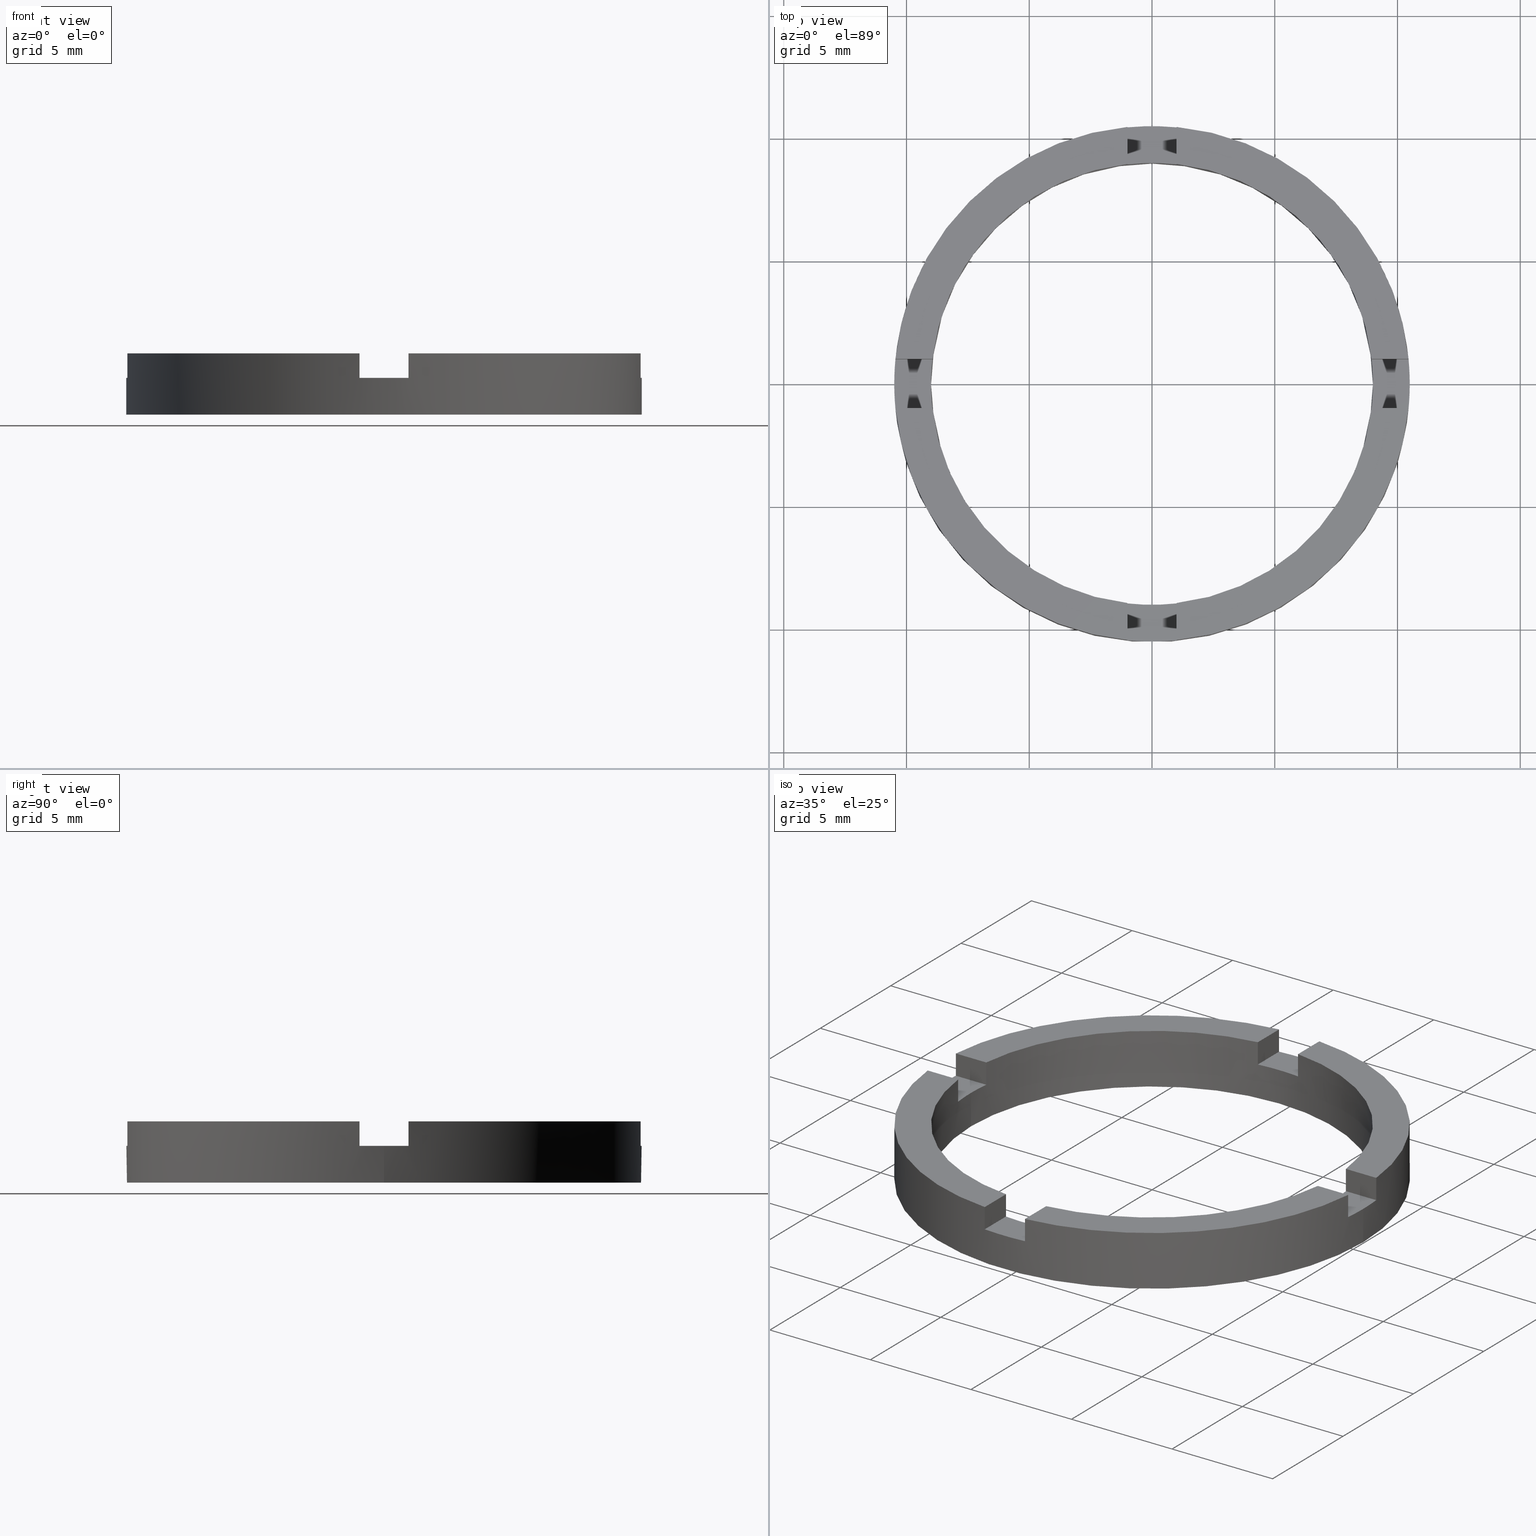
[diagram: canonical four-view strip — front | top / right | iso, engineering-drawing reading convention]
A machine part, canonical four-view strip (front | top / right | iso — engineering-drawing reading convention). The complete STEP part file that produces these views, byte-faithful:
ISO-10303-21;
HEADER;
FILE_DESCRIPTION (( 'STEP AP203' ),
    '1' );
FILE_NAME ('514049.step',
    '2024-12-26T02:32:40',
    ( 'MSI' ),
    ( '' ),
    'SwSTEP 2.0',
    'SolidWorks 2020',
    '' );
FILE_SCHEMA (( 'CONFIG_CONTROL_DESIGN' ));
ENDSEC;

DATA;
#1 = CIRCLE ( 'NONE', #500, 10.50000000000000178 ) ;
#2 = CARTESIAN_POINT ( 'NONE',  ( 8.944271909999168102, 0.9999999999998839817, 2.500000000000000000 ) ) ;
#3 = AXIS2_PLACEMENT_3D ( 'NONE', #119, #323, #541 ) ;
#4 = DIRECTION ( 'NONE',  ( 0.000000000000000000, 0.000000000000000000, 1.000000000000000000 ) ) ;
#5 = DIRECTION ( 'NONE',  ( -1.000000000000000000, 1.920586705545751444E-15, 0.000000000000000000 ) ) ;
#6 = EDGE_CURVE ( 'NONE', #219, #714, #130, .T. ) ;
#7 = FACE_OUTER_BOUND ( 'NONE', #673, .T. ) ;
#8 = CARTESIAN_POINT ( 'NONE',  ( 0.9999999999999622524, 3.500000000000003109, 2.500000000000000000 ) ) ;
#9 = CARTESIAN_POINT ( 'NONE',  ( 0.000000000000000000, 0.000000000000000000, 1.500000000000000000 ) ) ;
#10 = ADVANCED_FACE ( 'NONE', ( #395 ), #103, .F. ) ;
#11 = FACE_OUTER_BOUND ( 'NONE', #185, .T. ) ;
#12 = VECTOR ( 'NONE', #510, 1000.000000000000000 ) ;
#13 = DIRECTION ( 'NONE',  ( 1.000000000000000000, 0.000000000000000000, 0.000000000000000000 ) ) ;
#14 = DIRECTION ( 'NONE',  ( 0.000000000000000000, 0.000000000000000000, 1.000000000000000000 ) ) ;
#15 = CARTESIAN_POINT ( 'NONE',  ( 10.45227248018342436, -1.000000000000158984, 2.500000000000000000 ) ) ;
#16 = ADVANCED_FACE ( 'NONE', ( #371 ), #47, .T. ) ;
#17 = DIRECTION ( 'NONE',  ( 0.000000000000000000, 0.000000000000000000, 1.000000000000000000 ) ) ;
#18 = CARTESIAN_POINT ( 'NONE',  ( 0.000000000000000000, 0.000000000000000000, 1.500000000000000000 ) ) ;
#19 = PLANE ( 'NONE',  #609 ) ;
#20 = CARTESIAN_POINT ( 'NONE',  ( 0.000000000000000000, 0.000000000000000000, 2.500000000000000000 ) ) ;
#21 = DIRECTION ( 'NONE',  ( 0.000000000000000000, 0.000000000000000000, 1.000000000000000000 ) ) ;
#22 = AXIS2_PLACEMENT_3D ( 'NONE', #419, #639, #114 ) ;
#23 = DIRECTION ( 'NONE',  ( 1.000000000000000000, 0.000000000000000000, 0.000000000000000000 ) ) ;
#24 = CARTESIAN_POINT ( 'NONE',  ( 3.500000000000004441, -0.9999999999999608091, 2.500000000000000000 ) ) ;
#25 = EDGE_CURVE ( 'NONE', #418, #384, #625, .T. ) ;
#26 = CARTESIAN_POINT ( 'NONE',  ( 8.999999999999998224, 1.102182119232617517E-15, 1.500000000000000000 ) ) ;
#27 = DIRECTION ( 'NONE',  ( 1.000000000000000000, 0.000000000000000000, 0.000000000000000000 ) ) ;
#28 = VECTOR ( 'NONE', #117, 1000.000000000000000 ) ;
#29 = SECURITY_CLASSIFICATION ( '', '', #330 ) ;
#30 = DIRECTION ( 'NONE',  ( 1.000000000000000000, 0.000000000000000000, 0.000000000000000000 ) ) ;
#31 = EDGE_CURVE ( 'NONE', #702, #647, #372, .T. ) ;
#32 =( NAMED_UNIT ( * ) PLANE_ANGLE_UNIT ( ) SI_UNIT ( $, .RADIAN. ) );
#33 = VECTOR ( 'NONE', #646, 1000.000000000000000 ) ;
#34 = PLANE ( 'NONE',  #739 ) ;
#35 = DIRECTION ( 'NONE',  ( 2.571108009036986263E-15, 1.000000000000000000, 0.000000000000000000 ) ) ;
#36 = VECTOR ( 'NONE', #17, 1000.000000000000000 ) ;
#37 = CARTESIAN_POINT ( 'NONE',  ( 0.000000000000000000, 0.000000000000000000, 2.500000000000000000 ) ) ;
#38 = CC_DESIGN_PERSON_AND_ORGANIZATION_ASSIGNMENT ( #230, #757, ( #312 ) ) ;
#39 = APPROVAL_STATUS ( 'not_yet_approved' ) ;
#40 = DIRECTION ( 'NONE',  ( -0.000000000000000000, -0.000000000000000000, -1.000000000000000000 ) ) ;
#41 = DIRECTION ( 'NONE',  ( -1.000000000000000000, 2.571108009036986263E-15, 0.000000000000000000 ) ) ;
#42 = DIRECTION ( 'NONE',  ( -1.000000000000000000, 2.927345865710786872E-14, 0.000000000000000000 ) ) ;
#43 = CARTESIAN_POINT ( 'NONE',  ( -1.000000000000162759, -10.45227248018342259, 2.500000000000000000 ) ) ;
#44 = PLANE ( 'NONE',  #237 ) ;
#45 = AXIS2_PLACEMENT_3D ( 'NONE', #198, #4, #617 ) ;
#46 = CC_DESIGN_SECURITY_CLASSIFICATION ( #29, ( #283 ) ) ;
#47 = PLANE ( 'NONE',  #571 ) ;
#48 = DIRECTION ( 'NONE',  ( -1.000000000000000000, 2.849902853390471142E-14, 0.000000000000000000 ) ) ;
#49 = DIRECTION ( 'NONE',  ( 0.000000000000000000, 0.000000000000000000, 1.000000000000000000 ) ) ;
#50 = DIRECTION ( 'NONE',  ( -0.000000000000000000, -0.000000000000000000, -1.000000000000000000 ) ) ;
#51 = EDGE_CURVE ( 'NONE', #426, #199, #124, .T. ) ;
#52 = CARTESIAN_POINT ( 'NONE',  ( -10.45227248018344213, 0.9999999999999783507, 2.500000000000000000 ) ) ;
#53 = CARTESIAN_POINT ( 'NONE',  ( 0.000000000000000000, 0.000000000000000000, 1.500000000000000000 ) ) ;
#54 = DIRECTION ( 'NONE',  ( 0.000000000000000000, 0.000000000000000000, 1.000000000000000000 ) ) ;
#55 = CARTESIAN_POINT ( 'NONE',  ( 0.000000000000000000, 0.000000000000000000, 1.500000000000000000 ) ) ;
#56 = DIRECTION ( 'NONE',  ( -0.000000000000000000, -0.000000000000000000, -1.000000000000000000 ) ) ;
#57 = EDGE_CURVE ( 'NONE', #436, #412, #346, .T. ) ;
#58 = DIRECTION ( 'NONE',  ( 1.000000000000000000, 0.000000000000000000, 0.000000000000000000 ) ) ;
#59 = CARTESIAN_POINT ( 'NONE',  ( 8.944271909999168102, 0.9999999999998839817, 2.500000000000000000 ) ) ;
#60 = PERSON ( 'δָ��', 'δָ��', 'δָ��', ('δָ��'), ('δָ��'), ('δָ��') ) ;
#61 = CARTESIAN_POINT ( 'NONE',  ( 0.9999999999999722444, 8.944271909999157444, 2.500000000000000000 ) ) ;
#62 = CARTESIAN_POINT ( 'NONE',  ( -1.000000000000037748, 3.500000000000003109, 2.500000000000000000 ) ) ;
#63 = CARTESIAN_POINT ( 'NONE',  ( 1.000000000000040856, -3.500000000000003109, 1.500000000000000000 ) ) ;
#64 = CARTESIAN_POINT ( 'NONE',  ( 0.9999999999998371303, -10.45227248018345456, 2.500000000000000000 ) ) ;
#65 = CARTESIAN_POINT ( 'NONE',  ( -1.000000000000023981, 10.45227248018343502, 2.500000000000000000 ) ) ;
#66 = DIRECTION ( 'NONE',  ( 1.000000000000000000, 0.000000000000000000, 0.000000000000000000 ) ) ;
#67 = CARTESIAN_POINT ( 'NONE',  ( 0.000000000000000000, 0.000000000000000000, 2.500000000000000000 ) ) ;
#68 = AXIS2_PLACEMENT_3D ( 'NONE', #563, #594, #27 ) ;
#69 = DIRECTION ( 'NONE',  ( -0.000000000000000000, -0.000000000000000000, -1.000000000000000000 ) ) ;
#70 = CARTESIAN_POINT ( 'NONE',  ( 1.000000000000040856, -3.500000000000003109, 2.500000000000000000 ) ) ;
#71 = AXIS2_PLACEMENT_3D ( 'NONE', #18, #699, #304 ) ;
#72 = CARTESIAN_POINT ( 'NONE',  ( -3.500000000000001332, -1.000000000000039746, 1.500000000000000000 ) ) ;
#73 = CC_DESIGN_PERSON_AND_ORGANIZATION_ASSIGNMENT ( #215, #701, ( #283 ) ) ;
#74 = EDGE_CURVE ( 'NONE', #436, #683, #602, .T. ) ;
#75 = APPROVAL_ROLE ( '' ) ;
#76 = DIRECTION ( 'NONE',  ( 1.000000000000000000, 0.000000000000000000, 0.000000000000000000 ) ) ;
#77 = DIRECTION ( 'NONE',  ( 1.000000000000000000, 0.000000000000000000, -0.000000000000000000 ) ) ;
#78 = LINE ( 'NONE', #265, #606 ) ;
#79 = MECHANICAL_CONTEXT ( 'NONE', #539, 'mechanical' ) ;
#80 = APPROVAL ( #39, 'δָ��' ) ;
#81 = CARTESIAN_POINT ( 'NONE',  ( 8.944271909999143233, -1.000000000000116129, 2.500000000000000000 ) ) ;
#82 = VECTOR ( 'NONE', #155, 1000.000000000000000 ) ;
#83 = LINE ( 'NONE', #64, #362 ) ;
#84 = DIRECTION ( 'NONE',  ( 0.000000000000000000, -0.000000000000000000, 1.000000000000000000 ) ) ;
#85 = DIRECTION ( 'NONE',  ( -0.000000000000000000, -0.000000000000000000, -1.000000000000000000 ) ) ;
#86 = CIRCLE ( 'NONE', #264, 8.999999999999998224 ) ;
#87 = CARTESIAN_POINT ( 'NONE',  ( 0.000000000000000000, 0.000000000000000000, 1.500000000000000000 ) ) ;
#88 = AXIS2_PLACEMENT_3D ( 'NONE', #570, #567, #302 ) ;
#89 = CARTESIAN_POINT ( 'NONE',  ( 0.000000000000000000, 0.000000000000000000, 1.500000000000000000 ) ) ;
#90 = CARTESIAN_POINT ( 'NONE',  ( 10.45227248018345279, 0.9999999999998411271, 2.500000000000000000 ) ) ;
#91 = VECTOR ( 'NONE', #40, 1000.000000000000000 ) ;
#92 = CARTESIAN_POINT ( 'NONE',  ( 3.500000000000004441, 1.000000000000039302, 1.500000000000000000 ) ) ;
#93 = DIRECTION ( 'NONE',  ( 1.000000000000000000, 0.000000000000000000, -0.000000000000000000 ) ) ;
#94 = FACE_OUTER_BOUND ( 'NONE', #145, .T. ) ;
#95 = CARTESIAN_POINT ( 'NONE',  ( 0.000000000000000000, 0.000000000000000000, 2.500000000000000000 ) ) ;
#96 = ADVANCED_FACE ( 'NONE', ( #94 ), #34, .F. ) ;
#97 = PLANE ( 'NONE',  #472 ) ;
#98 = CARTESIAN_POINT ( 'NONE',  ( 0.9999999999999622524, 3.500000000000003109, 1.500000000000000000 ) ) ;
#99 = VECTOR ( 'NONE', #772, 1000.000000000000000 ) ;
#100 = DIRECTION ( 'NONE',  ( 1.000000000000000000, -1.920586705545751444E-15, 0.000000000000000000 ) ) ;
#101 = DIRECTION ( 'NONE',  ( 0.000000000000000000, 0.000000000000000000, 1.000000000000000000 ) ) ;
#102 = FACE_OUTER_BOUND ( 'NONE', #627, .T. ) ;
#103 = PLANE ( 'NONE',  #494 ) ;
#104 = CIRCLE ( 'NONE', #561, 8.999999999999998224 ) ;
#105 = DIRECTION ( 'NONE',  ( 0.000000000000000000, -0.000000000000000000, 1.000000000000000000 ) ) ;
#106 = CARTESIAN_POINT ( 'NONE',  ( -1.000000000000026867, 8.944271909999150338, 2.500000000000000000 ) ) ;
#107 = EDGE_CURVE ( 'NONE', #702, #199, #86, .T. ) ;
#108 = CYLINDRICAL_SURFACE ( 'NONE', #250, 10.50000000000000178 ) ;
#109 = CARTESIAN_POINT ( 'NONE',  ( -1.000000000000162759, -10.45227248018342259, 2.500000000000000000 ) ) ;
#110 = DIRECTION ( 'NONE',  ( 1.000000000000000000, 0.000000000000000000, -0.000000000000000000 ) ) ;
#111 = CC_DESIGN_PERSON_AND_ORGANIZATION_ASSIGNMENT ( #227, #689, ( #434 ) ) ;
#112 = ORIENTED_EDGE ( 'NONE', *, *, #674, .T. ) ;
#113 = ORIENTED_EDGE ( 'NONE', *, *, #416, .F. ) ;
#114 = DIRECTION ( 'NONE',  ( 1.000000000000000000, 0.000000000000000000, 0.000000000000000000 ) ) ;
#115 = DIRECTION ( 'NONE',  ( 2.927345865710786872E-14, 1.000000000000000000, -0.000000000000000000 ) ) ;
#116 = EDGE_CURVE ( 'NONE', #418, #428, #350, .T. ) ;
#117 = DIRECTION ( 'NONE',  ( -2.927345865710786872E-14, -1.000000000000000000, 0.000000000000000000 ) ) ;
#118 = ORIENTED_EDGE ( 'NONE', *, *, #490, .F. ) ;
#119 = CARTESIAN_POINT ( 'NONE',  ( 0.000000000000000000, 0.000000000000000000, 2.500000000000000000 ) ) ;
#120 = PLANE ( 'NONE',  #356 ) ;
#121 = ORIENTED_EDGE ( 'NONE', *, *, #241, .F. ) ;
#122 = EDGE_CURVE ( 'NONE', #153, #626, #588, .T. ) ;
#123 = ORIENTED_EDGE ( 'NONE', *, *, #595, .F. ) ;
#124 = LINE ( 'NONE', #296, #628 ) ;
#125 = EDGE_LOOP ( 'NONE', ( #140, #421, #671, #375 ) ) ;
#126 = ORIENTED_EDGE ( 'NONE', *, *, #443, .T. ) ;
#127 = VERTEX_POINT ( 'NONE', #90 ) ;
#128 = DIRECTION ( 'NONE',  ( 2.927345865710786872E-14, 1.000000000000000000, -0.000000000000000000 ) ) ;
#129 = ORIENTED_EDGE ( 'NONE', *, *, #496, .T. ) ;
#130 = LINE ( 'NONE', #299, #373 ) ;
#131 = EDGE_LOOP ( 'NONE', ( #660, #672, #466, #113, #424, #670 ) ) ;
#132 = AXIS2_PLACEMENT_3D ( 'NONE', #20, #725, #556 ) ;
#133 = ORIENTED_EDGE ( 'NONE', *, *, #720, .F. ) ;
#134 = ORIENTED_EDGE ( 'NONE', *, *, #122, .T. ) ;
#135 = ORIENTED_EDGE ( 'NONE', *, *, #152, .F. ) ;
#136 = EDGE_LOOP ( 'NONE', ( #733, #452, #688, #456 ) ) ;
#137 = ORIENTED_EDGE ( 'NONE', *, *, #620, .F. ) ;
#138 = ORIENTED_EDGE ( 'NONE', *, *, #397, .T. ) ;
#139 = ORIENTED_EDGE ( 'NONE', *, *, #749, .T. ) ;
#140 = ORIENTED_EDGE ( 'NONE', *, *, #116, .F. ) ;
#141 = ORIENTED_EDGE ( 'NONE', *, *, #284, .T. ) ;
#142 = EDGE_LOOP ( 'NONE', ( #129, #380, #411, #663 ) ) ;
#143 = ORIENTED_EDGE ( 'NONE', *, *, #244, .T. ) ;
#144 = EDGE_LOOP ( 'NONE', ( #226, #232 ) ) ;
#145 = EDGE_LOOP ( 'NONE', ( #224, #410, #631, #658 ) ) ;
#146 = VERTEX_POINT ( 'NONE', #288 ) ;
#147 = VERTEX_POINT ( 'NONE', #780 ) ;
#148 = AXIS2_PLACEMENT_3D ( 'NONE', #9, #298, #179 ) ;
#149 = ORIENTED_EDGE ( 'NONE', *, *, #211, .T. ) ;
#150 = ORIENTED_EDGE ( 'NONE', *, *, #397, .F. ) ;
#151 = ORIENTED_EDGE ( 'NONE', *, *, #51, .F. ) ;
#152 = EDGE_CURVE ( 'NONE', #444, #146, #354, .T. ) ;
#153 = VERTEX_POINT ( 'NONE', #369 ) ;
#154 = ORIENTED_EDGE ( 'NONE', *, *, #677, .F. ) ;
#155 = DIRECTION ( 'NONE',  ( 1.920586705545751050E-15, 1.000000000000000000, 0.000000000000000000 ) ) ;
#156 = ORIENTED_EDGE ( 'NONE', *, *, #530, .T. ) ;
#157 = EDGE_LOOP ( 'NONE', ( #638, #201, #172, #138, #704, #629, #389, #621, #399, #643, #479, #684 ) ) ;
#158 = EDGE_CURVE ( 'NONE', #382, #447, #341, .T. ) ;
#159 = ORIENTED_EDGE ( 'NONE', *, *, #408, .F. ) ;
#160 = ORIENTED_EDGE ( 'NONE', *, *, #637, .F. ) ;
#161 = ORIENTED_EDGE ( 'NONE', *, *, #600, .F. ) ;
#162 = EDGE_LOOP ( 'NONE', ( #379, #679, #118, #200 ) ) ;
#163 = ORIENTED_EDGE ( 'NONE', *, *, #598, .T. ) ;
#164 = EDGE_LOOP ( 'NONE', ( #112, #126, #161, #229 ) ) ;
#165 = EDGE_LOOP ( 'NONE', ( #440, #182, #700, #650 ) ) ;
#166 = ADVANCED_FACE ( 'NONE', ( #603 ), #605, .F. ) ;
#167 = VERTEX_POINT ( 'NONE', #43 ) ;
#168 = CARTESIAN_POINT ( 'NONE',  ( -1.000000000000118572, -8.944271909999143233, 1.500000000000000000 ) ) ;
#169 = CARTESIAN_POINT ( 'NONE',  ( -3.500000000000001332, -1.000000000000039746, 1.500000000000000000 ) ) ;
#170 = ORIENTED_EDGE ( 'NONE', *, *, #152, .T. ) ;
#171 = ADVANCED_FACE ( 'NONE', ( #102 ), #374, .T. ) ;
#172 = ORIENTED_EDGE ( 'NONE', *, *, #443, .F. ) ;
#173 = AXIS2_PLACEMENT_3D ( 'NONE', #67, #425, #281 ) ;
#174 = ORIENTED_EDGE ( 'NONE', *, *, #388, .T. ) ;
#175 = ORIENTED_EDGE ( 'NONE', *, *, #529, .F. ) ;
#176 = ORIENTED_EDGE ( 'NONE', *, *, #461, .F. ) ;
#177 = VERTEX_POINT ( 'NONE', #565 ) ;
#178 = CARTESIAN_POINT ( 'NONE',  ( 10.50000000000000178, 1.285879139104721028E-15, 1.500000000000000000 ) ) ;
#179 = DIRECTION ( 'NONE',  ( 1.000000000000000000, 0.000000000000000000, 0.000000000000000000 ) ) ;
#180 = EDGE_LOOP ( 'NONE', ( #692, #190, #696, #690 ) ) ;
#181 = APPROVAL ( #678, 'δָ��' ) ;
#182 = ORIENTED_EDGE ( 'NONE', *, *, #697, .F. ) ;
#183 = VERTEX_POINT ( 'NONE', #59 ) ;
#184 = DIRECTION ( 'NONE',  ( -0.000000000000000000, -0.000000000000000000, -1.000000000000000000 ) ) ;
#185 = EDGE_LOOP ( 'NONE', ( #665, #414, #708, #676, #712, #662 ) ) ;
#186 = VERTEX_POINT ( 'NONE', #214 ) ;
#187 = ORIENTED_EDGE ( 'NONE', *, *, #566, .T. ) ;
#188 = CARTESIAN_POINT ( 'NONE',  ( 0.000000000000000000, 0.000000000000000000, 0.000000000000000000 ) ) ;
#189 = ORIENTED_EDGE ( 'NONE', *, *, #457, .F. ) ;
#190 = ORIENTED_EDGE ( 'NONE', *, *, #107, .F. ) ;
#191 = AXIS2_PLACEMENT_3D ( 'NONE', #188, #703, #721 ) ;
#192 = AXIS2_PLACEMENT_3D ( 'NONE', #87, #398, #619 ) ;
#193 = DIRECTION ( 'NONE',  ( -1.000000000000000000, 0.000000000000000000, 0.000000000000000000 ) ) ;
#194 = ORIENTED_EDGE ( 'NONE', *, *, #408, .T. ) ;
#195 = ORIENTED_EDGE ( 'NONE', *, *, #560, .T. ) ;
#196 = ORIENTED_EDGE ( 'NONE', *, *, #359, .F. ) ;
#197 = ORIENTED_EDGE ( 'NONE', *, *, #318, .F. ) ;
#198 = CARTESIAN_POINT ( 'NONE',  ( 0.000000000000000000, 0.000000000000000000, 2.500000000000000000 ) ) ;
#199 = VERTEX_POINT ( 'NONE', #322 ) ;
#200 = ORIENTED_EDGE ( 'NONE', *, *, #255, .F. ) ;
#201 = ORIENTED_EDGE ( 'NONE', *, *, #416, .T. ) ;
#202 = VERTEX_POINT ( 'NONE', #753 ) ;
#203 = DIRECTION ( 'NONE',  ( -0.000000000000000000, -0.000000000000000000, -1.000000000000000000 ) ) ;
#204 = PLANE ( 'NONE',  #515 ) ;
#205 = CARTESIAN_POINT ( 'NONE',  ( -8.944271909999160997, 0.9999999999999744649, 2.500000000000000000 ) ) ;
#206 = CC_DESIGN_DATE_AND_TIME_ASSIGNMENT ( #483, #458, ( #434 ) ) ;
#207 = ORIENTED_EDGE ( 'NONE', *, *, #637, .T. ) ;
#208 = CARTESIAN_POINT ( 'NONE',  ( -0.9999999999999592548, -3.500000000000003109, 2.500000000000000000 ) ) ;
#209 = DIRECTION ( 'NONE',  ( -1.920586705545751050E-15, -1.000000000000000000, -0.000000000000000000 ) ) ;
#210 = DIRECTION ( 'NONE',  ( 1.000000000000000000, 0.000000000000000000, -0.000000000000000000 ) ) ;
#211 = EDGE_CURVE ( 'NONE', #436, #382, #591, .T. ) ;
#212 = ORIENTED_EDGE ( 'NONE', *, *, #777, .T. ) ;
#213 = LOCAL_TIME ( 10, 32, 40.00000000000000000, #724 ) ;
#214 = CARTESIAN_POINT ( 'NONE',  ( -8.999999999999998224, 0.000000000000000000, 0.000000000000000000 ) ) ;
#215 = PERSON_AND_ORGANIZATION ( #60, #233 ) ;
#216 = LOCAL_TIME ( 10, 32, 40.00000000000000000, #741 ) ;
#217 = CALENDAR_DATE ( 2024, 26, 12 ) ;
#218 = AXIS2_PLACEMENT_3D ( 'NONE', #55, #497, #58 ) ;
#219 = VERTEX_POINT ( 'NONE', #520 ) ;
#220 = PERSON_AND_ORGANIZATION_ROLE ( 'creator' ) ;
#221 = PERSON_AND_ORGANIZATION ( #60, #233 ) ;
#222 = CARTESIAN_POINT ( 'NONE',  ( 0.000000000000000000, 0.000000000000000000, 2.500000000000000000 ) ) ;
#223 = CALENDAR_DATE ( 2024, 26, 12 ) ;
#224 = ORIENTED_EDGE ( 'NONE', *, *, #57, .F. ) ;
#225 = CALENDAR_DATE ( 2024, 26, 12 ) ;
#226 = ORIENTED_EDGE ( 'NONE', *, *, #622, .T. ) ;
#227 = PERSON_AND_ORGANIZATION ( #60, #233 ) ;
#228 = AXIS2_PLACEMENT_3D ( 'NONE', #361, #653, #66 ) ;
#229 = ORIENTED_EDGE ( 'NONE', *, *, #335, .F. ) ;
#230 = PERSON_AND_ORGANIZATION ( #60, #233 ) ;
#231 = APPROVAL_DATE_TIME ( #736, #181 ) ;
#232 = ORIENTED_EDGE ( 'NONE', *, *, #744, .T. ) ;
#233 = ORGANIZATION ( 'δָ��', 'δָ��', '' ) ;
#234 = CIRCLE ( 'NONE', #71, 10.50000000000000178 ) ;
#235 = PLANE ( 'NONE',  #685 ) ;
#236 = FACE_OUTER_BOUND ( 'NONE', #157, .T. ) ;
#237 = AXIS2_PLACEMENT_3D ( 'NONE', #545, #576, #210 ) ;
#238 = VECTOR ( 'NONE', #69, 1000.000000000000000 ) ;
#239 = CARTESIAN_POINT ( 'NONE',  ( 0.9999999999999722444, 8.944271909999157444, 1.500000000000000000 ) ) ;
#240 = CARTESIAN_POINT ( 'NONE',  ( -8.999999999999998224, 0.000000000000000000, 2.500000000000000000 ) ) ;
#241 = EDGE_CURVE ( 'NONE', #664, #453, #83, .T. ) ;
#242 = VECTOR ( 'NONE', #585, 1000.000000000000000 ) ;
#243 = LINE ( 'NONE', #562, #773 ) ;
#244 = EDGE_CURVE ( 'NONE', #448, #702, #78, .T. ) ;
#245 = FACE_BOUND ( 'NONE', #144, .T. ) ;
#246 = CARTESIAN_POINT ( 'NONE',  ( 0.000000000000000000, 0.000000000000000000, 1.500000000000000000 ) ) ;
#247 = DIRECTION ( 'NONE',  ( 1.000000000000000000, 0.000000000000000000, 0.000000000000000000 ) ) ;
#248 = CIRCLE ( 'NONE', #148, 8.999999999999998224 ) ;
#249 = VECTOR ( 'NONE', #56, 1000.000000000000000 ) ;
#250 = AXIS2_PLACEMENT_3D ( 'NONE', #442, #636, #726 ) ;
#251 = LINE ( 'NONE', #15, #242 ) ;
#252 = CIRCLE ( 'NONE', #525, 8.999999999999998224 ) ;
#253 = CARTESIAN_POINT ( 'NONE',  ( -1.000000000000162759, -10.45227248018342259, 1.500000000000000000 ) ) ;
#254 = CARTESIAN_POINT ( 'NONE',  ( 0.9999999999998371303, -10.45227248018345456, 2.500000000000000000 ) ) ;
#255 = EDGE_CURVE ( 'NONE', #634, #680, #104, .T. ) ;
#256 = VECTOR ( 'NONE', #115, 1000.000000000000000 ) ;
#257 = FACE_OUTER_BOUND ( 'NONE', #142, .T. ) ;
#258 = FACE_OUTER_BOUND ( 'NONE', #131, .T. ) ;
#259 = FACE_OUTER_BOUND ( 'NONE', #376, .T. ) ;
#260 = DIRECTION ( 'NONE',  ( 0.000000000000000000, 0.000000000000000000, 1.000000000000000000 ) ) ;
#261 = DIRECTION ( 'NONE',  ( -2.571108009036985868E-15, -1.000000000000000000, 0.000000000000000000 ) ) ;
#262 = LINE ( 'NONE', #652, #238 ) ;
#263 = FACE_OUTER_BOUND ( 'NONE', #164, .T. ) ;
#264 = AXIS2_PLACEMENT_3D ( 'NONE', #222, #49, #76 ) ;
#265 = CARTESIAN_POINT ( 'NONE',  ( -3.500000000000001332, -1.000000000000039746, 2.500000000000000000 ) ) ;
#266 = VECTOR ( 'NONE', #779, 1000.000000000000000 ) ;
#267 = CARTESIAN_POINT ( 'NONE',  ( 8.944271909999143233, -1.000000000000116129, 2.500000000000000000 ) ) ;
#268 = CYLINDRICAL_SURFACE ( 'NONE', #615, 10.50000000000000178 ) ;
#269 = CIRCLE ( 'NONE', #321, 10.50000000000000178 ) ;
#270 = CIRCLE ( 'NONE', #300, 10.50000000000000178 ) ;
#271 = CIRCLE ( 'NONE', #668, 8.999999999999998224 ) ;
#272 = DIRECTION ( 'NONE',  ( -0.000000000000000000, 0.000000000000000000, 1.000000000000000000 ) ) ;
#273 = CARTESIAN_POINT ( 'NONE',  ( 0.000000000000000000, 0.000000000000000000, 2.500000000000000000 ) ) ;
#274 = FACE_OUTER_BOUND ( 'NONE', #404, .T. ) ;
#275 = AXIS2_PLACEMENT_3D ( 'NONE', #580, #402, #716 ) ;
#276 = CIRCLE ( 'NONE', #68, 8.999999999999998224 ) ;
#277 = DIRECTION ( 'NONE',  ( -0.000000000000000000, 0.000000000000000000, 1.000000000000000000 ) ) ;
#278 = LINE ( 'NONE', #581, #280 ) ;
#279 = VECTOR ( 'NONE', #128, 1000.000000000000000 ) ;
#280 = VECTOR ( 'NONE', #470, 1000.000000000000000 ) ;
#281 = DIRECTION ( 'NONE',  ( 1.000000000000000000, 0.000000000000000000, -0.000000000000000000 ) ) ;
#282 = LINE ( 'NONE', #70, #279 ) ;
#283 = PRODUCT_DEFINITION_FORMATION_WITH_SPECIFIED_SOURCE ( '�κ�', '', #312, .NOT_KNOWN. ) ;
#284 = EDGE_CURVE ( 'NONE', #428, #202, #348, .T. ) ;
#285 = DIRECTION ( 'NONE',  ( 1.000000000000000000, 0.000000000000000000, 0.000000000000000000 ) ) ;
#286 = EDGE_CURVE ( 'NONE', #641, #647, #345, .T. ) ;
#287 = ADVANCED_FACE ( 'NONE', ( #364 ), #108, .T. ) ;
#288 = CARTESIAN_POINT ( 'NONE',  ( 10.50000000000000178, 1.285879139104721028E-15, 0.000000000000000000 ) ) ;
#289 = EDGE_CURVE ( 'NONE', #418, #482, #365, .T. ) ;
#290 = CARTESIAN_POINT ( 'NONE',  ( -8.944271909999152115, -1.000000000000025535, 2.500000000000000000 ) ) ;
#291 = EDGE_CURVE ( 'NONE', #199, #167, #297, .T. ) ;
#292 = DIRECTION ( 'NONE',  ( -2.849902853390471142E-14, -1.000000000000000000, 0.000000000000000000 ) ) ;
#293 = CIRCLE ( 'NONE', #705, 10.50000000000000178 ) ;
#294 = PLANE ( 'NONE',  #192 ) ;
#295 = CARTESIAN_POINT ( 'NONE',  ( -3.500000000000002220, 0.9999999999999603650, 2.500000000000000000 ) ) ;
#296 = CARTESIAN_POINT ( 'NONE',  ( -1.000000000000118572, -8.944271909999143233, 2.500000000000000000 ) ) ;
#297 = LINE ( 'NONE', #208, #33 ) ;
#298 = DIRECTION ( 'NONE',  ( 0.000000000000000000, 0.000000000000000000, 1.000000000000000000 ) ) ;
#299 = CARTESIAN_POINT ( 'NONE',  ( -10.50000000000000178, 0.000000000000000000, 2.500000000000000000 ) ) ;
#300 = AXIS2_PLACEMENT_3D ( 'NONE', #273, #649, #324 ) ;
#301 = DIRECTION ( 'NONE',  ( -0.000000000000000000, 0.000000000000000000, 1.000000000000000000 ) ) ;
#302 = DIRECTION ( 'NONE',  ( 1.000000000000000000, 0.000000000000000000, 0.000000000000000000 ) ) ;
#303 = DIRECTION ( 'NONE',  ( -0.000000000000000000, -0.000000000000000000, -1.000000000000000000 ) ) ;
#304 = DIRECTION ( 'NONE',  ( 1.000000000000000000, 0.000000000000000000, 0.000000000000000000 ) ) ;
#305 = DIRECTION ( 'NONE',  ( -0.000000000000000000, -0.000000000000000000, -1.000000000000000000 ) ) ;
#306 = MANIFOLD_SOLID_BREP ( '�г�-����1', #441 ) ;
#307 = EDGE_CURVE ( 'NONE', #426, #400, #549, .T. ) ;
#308 = CARTESIAN_POINT ( 'NONE',  ( 0.9999999999998371303, -10.45227248018345456, 1.500000000000000000 ) ) ;
#309 = CARTESIAN_POINT ( 'NONE',  ( -8.944271909999152115, -1.000000000000025535, 1.500000000000000000 ) ) ;
#310 = ADVANCED_FACE ( 'NONE', ( #551 ), #765, .T. ) ;
#311 = CC_DESIGN_DATE_AND_TIME_ASSIGNMENT ( #727, #601, ( #29 ) ) ;
#312 = PRODUCT ( '514049', '514049', '', ( #79 ) ) ;
#313 = CARTESIAN_POINT ( 'NONE',  ( 0.000000000000000000, 0.000000000000000000, 2.500000000000000000 ) ) ;
#314 = CARTESIAN_POINT ( 'NONE',  ( 0.000000000000000000, 0.000000000000000000, 1.500000000000000000 ) ) ;
#315 = EDGE_CURVE ( 'NONE', #400, #453, #293, .T. ) ;
#316 = ADVANCED_FACE ( 'NONE', ( #257 ), #235, .T. ) ;
#317 = ADVANCED_FACE ( 'NONE', ( #258 ), #294, .T. ) ;
#318 = EDGE_CURVE ( 'NONE', #642, #407, #526, .T. ) ;
#319 = CARTESIAN_POINT ( 'NONE',  ( 3.500000000000004441, 1.000000000000039302, 1.500000000000000000 ) ) ;
#320 = CARTESIAN_POINT ( 'NONE',  ( 0.000000000000000000, 0.000000000000000000, 2.500000000000000000 ) ) ;
#321 = AXIS2_PLACEMENT_3D ( 'NONE', #587, #648, #735 ) ;
#322 = CARTESIAN_POINT ( 'NONE',  ( -1.000000000000118572, -8.944271909999143233, 2.500000000000000000 ) ) ;
#323 = DIRECTION ( 'NONE',  ( 0.000000000000000000, 0.000000000000000000, 1.000000000000000000 ) ) ;
#324 = DIRECTION ( 'NONE',  ( 1.000000000000000000, 0.000000000000000000, 0.000000000000000000 ) ) ;
#325 = ADVANCED_FACE ( 'NONE', ( #236 ), #523, .F. ) ;
#326 = ADVANCED_FACE ( 'NONE', ( #782 ), #586, .T. ) ;
#327 = DIRECTION ( 'NONE',  ( 1.000000000000000000, -2.571108009036985474E-15, -0.000000000000000000 ) ) ;
#328 = AXIS2_PLACEMENT_3D ( 'NONE', #53, #616, #575 ) ;
#329 = EDGE_CURVE ( 'NONE', #426, #626, #755, .T. ) ;
#330 = SECURITY_CLASSIFICATION_LEVEL ( 'unclassified' ) ;
#331 = CARTESIAN_POINT ( 'NONE',  ( 0.000000000000000000, 0.000000000000000000, 2.500000000000000000 ) ) ;
#332 = PRODUCT_RELATED_PRODUCT_CATEGORY ( 'detail', '', ( #312 ) ) ;
#333 = DIRECTION ( 'NONE',  ( -0.000000000000000000, -0.000000000000000000, -1.000000000000000000 ) ) ;
#334 = ADVANCED_FACE ( 'NONE', ( #775 ), #353, .F. ) ;
#335 = EDGE_CURVE ( 'NONE', #127, #377, #524, .T. ) ;
#336 = EDGE_CURVE ( 'NONE', #698, #384, #243, .T. ) ;
#337 = CARTESIAN_POINT ( 'NONE',  ( -3.500000000000002220, 0.9999999999999603650, 1.500000000000000000 ) ) ;
#338 = DIRECTION ( 'NONE',  ( 0.000000000000000000, 0.000000000000000000, 1.000000000000000000 ) ) ;
#339 = AXIS2_PLACEMENT_3D ( 'NONE', #417, #184, #193 ) ;
#340 = PLANE ( 'NONE',  #554 ) ;
#341 = LINE ( 'NONE', #459, #593 ) ;
#342 = CARTESIAN_POINT ( 'NONE',  ( 8.999999999999998224, 1.102182119232617517E-15, 0.000000000000000000 ) ) ;
#343 = DIRECTION ( 'NONE',  ( 1.000000000000000000, -2.571108009036985868E-15, 0.000000000000000000 ) ) ;
#344 = VECTOR ( 'NONE', #599, 1000.000000000000000 ) ;
#345 = LINE ( 'NONE', #72, #607 ) ;
#346 = LINE ( 'NONE', #381, #596 ) ;
#347 = AXIS2_PLACEMENT_3D ( 'NONE', #246, #301, #13 ) ;
#348 = LINE ( 'NONE', #363, #344 ) ;
#349 = DIRECTION ( 'NONE',  ( 2.849902853390471142E-14, 1.000000000000000000, 0.000000000000000000 ) ) ;
#350 = LINE ( 'NONE', #98, #82 ) ;
#351 = DIRECTION ( 'NONE',  ( -0.000000000000000000, -0.000000000000000000, -1.000000000000000000 ) ) ;
#352 = DIRECTION ( 'NONE',  ( -0.000000000000000000, 0.000000000000000000, 1.000000000000000000 ) ) ;
#353 = PLANE ( 'NONE',  #644 ) ;
#354 = LINE ( 'NONE', #403, #99 ) ;
#355 = CARTESIAN_POINT ( 'NONE',  ( 0.9999999999999726885, 8.944271909999159220, 2.500000000000000000 ) ) ;
#356 = AXIS2_PLACEMENT_3D ( 'NONE', #582, #35, #41 ) ;
#357 = CARTESIAN_POINT ( 'NONE',  ( -8.999999999999998224, 0.000000000000000000, 1.500000000000000000 ) ) ;
#358 = DIRECTION ( 'NONE',  ( 1.000000000000000000, 0.000000000000000000, 0.000000000000000000 ) ) ;
#359 = EDGE_CURVE ( 'NONE', #444, #377, #1, .T. ) ;
#360 = DIRECTION ( 'NONE',  ( -0.000000000000000000, -0.000000000000000000, -1.000000000000000000 ) ) ;
#361 = CARTESIAN_POINT ( 'NONE',  ( 0.000000000000000000, 0.000000000000000000, 0.000000000000000000 ) ) ;
#362 = VECTOR ( 'NONE', #203, 1000.000000000000000 ) ;
#363 = CARTESIAN_POINT ( 'NONE',  ( 0.9999999999999756861, 10.45227248018344035, 2.500000000000000000 ) ) ;
#364 = FACE_OUTER_BOUND ( 'NONE', #666, .T. ) ;
#365 = LINE ( 'NONE', #355, #36 ) ;
#366 = EDGE_CURVE ( 'NONE', #634, #384, #262, .T. ) ;
#367 = VERTEX_POINT ( 'NONE', #65 ) ;
#368 = DIRECTION ( 'NONE',  ( 1.000000000000000000, -2.571108009036985474E-15, -0.000000000000000000 ) ) ;
#369 = CARTESIAN_POINT ( 'NONE',  ( 0.9999999999998814282, -8.944271909999169878, 2.500000000000000000 ) ) ;
#370 = DIRECTION ( 'NONE',  ( 0.000000000000000000, 0.000000000000000000, 1.000000000000000000 ) ) ;
#371 = FACE_OUTER_BOUND ( 'NONE', #165, .T. ) ;
#372 = LINE ( 'NONE', #290, #624 ) ;
#373 = VECTOR ( 'NONE', #305, 1000.000000000000000 ) ;
#374 = PLANE ( 'NONE',  #173 ) ;
#375 = ORIENTED_EDGE ( 'NONE', *, *, #284, .F. ) ;
#376 = EDGE_LOOP ( 'NONE', ( #196, #170, #174, #431, #176, #694, #686, #195, #378, #141, #159, #687 ) ) ;
#377 = VERTEX_POINT ( 'NONE', #742 ) ;
#378 = ORIENTED_EDGE ( 'NONE', *, *, #496, .F. ) ;
#379 = ORIENTED_EDGE ( 'NONE', *, *, #557, .F. ) ;
#380 = ORIENTED_EDGE ( 'NONE', *, *, #336, .T. ) ;
#381 = CARTESIAN_POINT ( 'NONE',  ( 3.500000000000004441, -0.9999999999999608091, 1.500000000000000000 ) ) ;
#382 = VERTEX_POINT ( 'NONE', #26 ) ;
#383 = ORIENTED_EDGE ( 'NONE', *, *, #329, .F. ) ;
#384 = VERTEX_POINT ( 'NONE', #508 ) ;
#385 = AXIS2_PLACEMENT_3D ( 'NONE', #604, #770, #763 ) ;
#386 = ORIENTED_EDGE ( 'NONE', *, *, #6, .T. ) ;
#387 = VERTEX_POINT ( 'NONE', #501 ) ;
#388 = EDGE_CURVE ( 'NONE', #146, #714, #269, .T. ) ;
#389 = ORIENTED_EDGE ( 'NONE', *, *, #366, .F. ) ;
#390 = DIRECTION ( 'NONE',  ( -1.000000000000000000, 2.571108009036985868E-15, 0.000000000000000000 ) ) ;
#391 = DIRECTION ( 'NONE',  ( 1.000000000000000000, -2.849902853390471142E-14, 0.000000000000000000 ) ) ;
#392 = ORIENTED_EDGE ( 'NONE', *, *, #241, .T. ) ;
#393 = ORIENTED_EDGE ( 'NONE', *, *, #107, .T. ) ;
#394 = DIRECTION ( 'NONE',  ( 0.000000000000000000, 0.000000000000000000, 1.000000000000000000 ) ) ;
#395 = FACE_OUTER_BOUND ( 'NONE', #635, .T. ) ;
#396 = ORIENTED_EDGE ( 'NONE', *, *, #366, .T. ) ;
#397 = EDGE_CURVE ( 'NONE', #183, #482, #521, .T. ) ;
#398 = DIRECTION ( 'NONE',  ( -0.000000000000000000, 0.000000000000000000, 1.000000000000000000 ) ) ;
#399 = ORIENTED_EDGE ( 'NONE', *, *, #749, .F. ) ;
#400 = VERTEX_POINT ( 'NONE', #253 ) ;
#401 = ADVANCED_FACE ( 'NONE', ( #263 ), #204, .F. ) ;
#402 = DIRECTION ( 'NONE',  ( 0.000000000000000000, 0.000000000000000000, 1.000000000000000000 ) ) ;
#403 = CARTESIAN_POINT ( 'NONE',  ( 10.50000000000000178, 1.285879139104721028E-15, 2.500000000000000000 ) ) ;
#404 = EDGE_LOOP ( 'NONE', ( #445, #207, #383, #415 ) ) ;
#405 = CARTESIAN_POINT ( 'NONE',  ( 1.000000000000040856, -3.500000000000003109, 1.500000000000000000 ) ) ;
#406 = CC_DESIGN_PERSON_AND_ORGANIZATION_ASSIGNMENT ( #221, #220, ( #283 ) ) ;
#407 = VERTEX_POINT ( 'NONE', #544 ) ;
#408 = EDGE_CURVE ( 'NONE', #127, #202, #771, .T. ) ;
#409 = VERTEX_POINT ( 'NONE', #357 ) ;
#410 = ORIENTED_EDGE ( 'NONE', *, *, #74, .T. ) ;
#411 = ORIENTED_EDGE ( 'NONE', *, *, #25, .F. ) ;
#412 = VERTEX_POINT ( 'NONE', #729 ) ;
#413 = DIRECTION ( 'NONE',  ( 1.920586705545751444E-15, 1.000000000000000000, 0.000000000000000000 ) ) ;
#414 = ORIENTED_EDGE ( 'NONE', *, *, #540, .T. ) ;
#415 = ORIENTED_EDGE ( 'NONE', *, *, #307, .T. ) ;
#416 = EDGE_CURVE ( 'NONE', #382, #387, #498, .T. ) ;
#417 = CARTESIAN_POINT ( 'NONE',  ( 0.000000000000000000, 0.000000000000000000, 2.500000000000000000 ) ) ;
#418 = VERTEX_POINT ( 'NONE', #239 ) ;
#419 = CARTESIAN_POINT ( 'NONE',  ( 0.000000000000000000, 0.000000000000000000, 2.500000000000000000 ) ) ;
#420 = DIRECTION ( 'NONE',  ( 1.000000000000000000, 0.000000000000000000, 0.000000000000000000 ) ) ;
#421 = ORIENTED_EDGE ( 'NONE', *, *, #289, .T. ) ;
#422 = DIRECTION ( 'NONE',  ( 1.000000000000000000, -2.927345865710786872E-14, 0.000000000000000000 ) ) ;
#423 = EDGE_LOOP ( 'NONE', ( #212, #134, #160, #121 ) ) ;
#424 = ORIENTED_EDGE ( 'NONE', *, *, #211, .F. ) ;
#425 = DIRECTION ( 'NONE',  ( 0.000000000000000000, 0.000000000000000000, 1.000000000000000000 ) ) ;
#426 = VERTEX_POINT ( 'NONE', #168 ) ;
#427 = PLANE ( 'NONE',  #275 ) ;
#428 = VERTEX_POINT ( 'NONE', #476 ) ;
#429 = DIRECTION ( 'NONE',  ( -0.000000000000000000, 0.000000000000000000, 1.000000000000000000 ) ) ;
#430 = ADVANCED_FACE ( 'NONE', ( #522 ), #97, .F. ) ;
#431 = ORIENTED_EDGE ( 'NONE', *, *, #6, .F. ) ;
#432 = CARTESIAN_POINT ( 'NONE',  ( 0.000000000000000000, 0.000000000000000000, 1.500000000000000000 ) ) ;
#433 = EDGE_LOOP ( 'NONE', ( #489, #651 ) ) ;
#434 = PRODUCT_DEFINITION ( 'δ֪', '', #283, #512 ) ;
#435 = CARTESIAN_POINT ( 'NONE',  ( 0.000000000000000000, 0.000000000000000000, 1.500000000000000000 ) ) ;
#436 = VERTEX_POINT ( 'NONE', #709 ) ;
#437 = EDGE_LOOP ( 'NONE', ( #143, #656, #747, #137 ) ) ;
#438 = CARTESIAN_POINT ( 'NONE',  ( -8.944271909999160997, 0.9999999999999744649, 2.500000000000000000 ) ) ;
#439 = ORIENTED_EDGE ( 'NONE', *, *, #329, .T. ) ;
#440 = ORIENTED_EDGE ( 'NONE', *, *, #731, .F. ) ;
#441 = CLOSED_SHELL ( 'NONE', ( #166, #532, #310, #171, #16, #326, #455, #287, #325, #633, #778, #706, #334, #430, #657, #401, #96, #317, #10, #542, #316 ) ) ;
#442 = CARTESIAN_POINT ( 'NONE',  ( 0.000000000000000000, 0.000000000000000000, 2.500000000000000000 ) ) ;
#443 = EDGE_CURVE ( 'NONE', #183, #387, #756, .T. ) ;
#444 = VERTEX_POINT ( 'NONE', #178 ) ;
#445 = ORIENTED_EDGE ( 'NONE', *, *, #315, .T. ) ;
#446 = ORIENTED_EDGE ( 'NONE', *, *, #674, .F. ) ;
#447 = VERTEX_POINT ( 'NONE', #342 ) ;
#448 = VERTEX_POINT ( 'NONE', #573 ) ;
#449 = EDGE_LOOP ( 'NONE', ( #149, #675, #654, #682, #187, #695, #393, #151, #439, #618, #693, #451 ) ) ;
#450 = APPROVAL_ROLE ( '' ) ;
#451 = ORIENTED_EDGE ( 'NONE', *, *, #74, .F. ) ;
#452 = ORIENTED_EDGE ( 'NONE', *, *, #51, .T. ) ;
#453 = VERTEX_POINT ( 'NONE', #308 ) ;
#454 = PRODUCT_DEFINITION_SHAPE ( 'NONE', 'NONE',  #434 ) ;
#455 = ADVANCED_FACE ( 'NONE', ( #781, #245 ), #427, .F. ) ;
#456 = ORIENTED_EDGE ( 'NONE', *, *, #530, .F. ) ;
#457 = EDGE_CURVE ( 'NONE', #482, #202, #517, .T. ) ;
#458 = DATE_TIME_ROLE ( 'creation_date' ) ;
#459 = CARTESIAN_POINT ( 'NONE',  ( 8.999999999999998224, 1.102182119232617517E-15, 2.500000000000000000 ) ) ;
#460 = DIRECTION ( 'NONE',  ( -0.000000000000000000, 0.000000000000000000, 1.000000000000000000 ) ) ;
#461 = EDGE_CURVE ( 'NONE', #642, #219, #527, .T. ) ;
#462 = APPROVAL_DATE_TIME ( #488, #728 ) ;
#463 =( LENGTH_UNIT ( ) NAMED_UNIT ( * ) SI_UNIT ( .MILLI., .METRE. ) );
#464 = APPROVAL_DATE_TIME ( #743, #80 ) ;
#465 = APPLICATION_CONTEXT ( 'configuration controlled 3d designs of mechanical parts and assemblies' ) ;
#466 = ORIENTED_EDGE ( 'NONE', *, *, #600, .T. ) ;
#467 = DIRECTION ( 'NONE',  ( -0.000000000000000000, -0.000000000000000000, -1.000000000000000000 ) ) ;
#468 = PERSON_AND_ORGANIZATION ( #60, #233 ) ;
#469 = DIRECTION ( 'NONE',  ( -1.000000000000000000, 0.000000000000000000, 0.000000000000000000 ) ) ;
#470 = DIRECTION ( 'NONE',  ( -1.000000000000000000, 2.849902853390471142E-14, -0.000000000000000000 ) ) ;
#471 = PERSON_AND_ORGANIZATION ( #60, #233 ) ;
#472 = AXIS2_PLACEMENT_3D ( 'NONE', #552, #42, #492 ) ;
#473 = CC_DESIGN_PERSON_AND_ORGANIZATION_ASSIGNMENT ( #485, #528, ( #29 ) ) ;
#474 = LOCAL_TIME ( 10, 32, 40.00000000000000000, #740 ) ;
#475 = SHAPE_DEFINITION_REPRESENTATION ( #454, #761 ) ;
#476 = CARTESIAN_POINT ( 'NONE',  ( 0.9999999999999753530, 10.45227248018343857, 1.500000000000000000 ) ) ;
#477 = CALENDAR_DATE ( 2024, 26, 12 ) ;
#478 = CARTESIAN_POINT ( 'NONE',  ( 0.9999999999998814282, -8.944271909999169878, 1.500000000000000000 ) ) ;
#479 = ORIENTED_EDGE ( 'NONE', *, *, #564, .T. ) ;
#480 = APPROVAL_PERSON_ORGANIZATION ( #718, #80, #776 ) ;
#481 = EDGE_CURVE ( 'NONE', #714, #146, #774, .T. ) ;
#482 = VERTEX_POINT ( 'NONE', #61 ) ;
#483 = DATE_AND_TIME ( #225, #216 ) ;
#484 = CARTESIAN_POINT ( 'NONE',  ( 0.000000000000000000, 0.000000000000000000, 2.500000000000000000 ) ) ;
#485 = PERSON_AND_ORGANIZATION ( #60, #233 ) ;
#486 = CARTESIAN_POINT ( 'NONE',  ( 0.000000000000000000, 0.000000000000000000, 0.000000000000000000 ) ) ;
#487 = ORIENTED_EDGE ( 'NONE', *, *, #315, .F. ) ;
#488 = DATE_AND_TIME ( #734, #213 ) ;
#489 = ORIENTED_EDGE ( 'NONE', *, *, #481, .F. ) ;
#490 = EDGE_CURVE ( 'NONE', #680, #407, #752, .T. ) ;
#491 = LINE ( 'NONE', #109, #762 ) ;
#492 = DIRECTION ( 'NONE',  ( -2.927345865710786872E-14, -1.000000000000000000, 0.000000000000000000 ) ) ;
#493 = LINE ( 'NONE', #62, #506 ) ;
#494 = AXIS2_PLACEMENT_3D ( 'NONE', #577, #5, #713 ) ;
#495 = VECTOR ( 'NONE', #101, 1000.000000000000000 ) ;
#496 = EDGE_CURVE ( 'NONE', #428, #698, #516, .T. ) ;
#497 = DIRECTION ( 'NONE',  ( -0.000000000000000000, 0.000000000000000000, 1.000000000000000000 ) ) ;
#498 = CIRCLE ( 'NONE', #347, 8.999999999999998224 ) ;
#499 = VECTOR ( 'NONE', #630, 1000.000000000000000 ) ;
#500 = AXIS2_PLACEMENT_3D ( 'NONE', #435, #272, #23 ) ;
#501 = CARTESIAN_POINT ( 'NONE',  ( 8.944271909999168102, 0.9999999999998839817, 1.500000000000000000 ) ) ;
#502 = UNCERTAINTY_MEASURE_WITH_UNIT (LENGTH_MEASURE( 1.000000000000000082E-05 ), #463, 'distance_accuracy_value', 'NONE');
#503 = LINE ( 'NONE', #92, #511 ) ;
#504 = CARTESIAN_POINT ( 'NONE',  ( -1.000000000000023981, 10.45227248018343502, 1.500000000000000000 ) ) ;
#505 = VECTOR ( 'NONE', #390, 1000.000000000000000 ) ;
#506 = VECTOR ( 'NONE', #717, 1000.000000000000000 ) ;
#507 = LINE ( 'NONE', #553, #754 ) ;
#508 = CARTESIAN_POINT ( 'NONE',  ( -1.000000000000026867, 8.944271909999150338, 1.500000000000000000 ) ) ;
#509 = VECTOR ( 'NONE', #50, 1000.000000000000000 ) ;
#510 = DIRECTION ( 'NONE',  ( 0.000000000000000000, 0.000000000000000000, 1.000000000000000000 ) ) ;
#511 = VECTOR ( 'NONE', #589, 1000.000000000000000 ) ;
#512 = DESIGN_CONTEXT ( 'detailed design', #465, 'design' ) ;
#513 = FACE_OUTER_BOUND ( 'NONE', #437, .T. ) ;
#514 = CARTESIAN_POINT ( 'NONE',  ( -0.9999999999999592548, -3.500000000000003109, 1.500000000000000000 ) ) ;
#515 = AXIS2_PLACEMENT_3D ( 'NONE', #319, #349, #48 ) ;
#516 = CIRCLE ( 'NONE', #547, 10.50000000000000178 ) ;
#517 = LINE ( 'NONE', #8, #499 ) ;
#518 = VECTOR ( 'NONE', #360, 1000.000000000000000 ) ;
#519 = CIRCLE ( 'NONE', #22, 10.50000000000000178 ) ;
#520 = CARTESIAN_POINT ( 'NONE',  ( -10.50000000000000178, 0.000000000000000000, 1.500000000000000000 ) ) ;
#521 = CIRCLE ( 'NONE', #3, 8.999999999999998224 ) ;
#522 = FACE_OUTER_BOUND ( 'NONE', #136, .T. ) ;
#523 = CYLINDRICAL_SURFACE ( 'NONE', #339, 8.999999999999998224 ) ;
#524 = LINE ( 'NONE', #592, #518 ) ;
#525 = AXIS2_PLACEMENT_3D ( 'NONE', #486, #54, #247 ) ;
#526 = LINE ( 'NONE', #52, #495 ) ;
#527 = CIRCLE ( 'NONE', #328, 10.50000000000000178 ) ;
#528 = PERSON_AND_ORGANIZATION_ROLE ( 'classification_officer' ) ;
#529 = EDGE_CURVE ( 'NONE', #177, #642, #783, .T. ) ;
#530 = EDGE_CURVE ( 'NONE', #400, #167, #491, .T. ) ;
#531 = LINE ( 'NONE', #438, #12 ) ;
#532 = ADVANCED_FACE ( 'NONE', ( #259 ), #268, .T. ) ;
#533 = CIRCLE ( 'NONE', #228, 8.999999999999998224 ) ;
#534 = APPLICATION_PROTOCOL_DEFINITION ( 'international standard', 'config_control_design', 1994, #465 ) ;
#535 = CIRCLE ( 'NONE', #590, 10.50000000000000178 ) ;
#536 = LINE ( 'NONE', #24, #538 ) ;
#537 = EDGE_CURVE ( 'NONE', #367, #407, #519, .T. ) ;
#538 = VECTOR ( 'NONE', #745, 1000.000000000000000 ) ;
#539 = APPLICATION_CONTEXT ( 'configuration controlled 3d designs of mechanical parts and assemblies' ) ;
#540 = EDGE_CURVE ( 'NONE', #219, #641, #234, .T. ) ;
#541 = DIRECTION ( 'NONE',  ( 1.000000000000000000, 0.000000000000000000, 0.000000000000000000 ) ) ;
#542 = ADVANCED_FACE ( 'NONE', ( #758 ), #19, .F. ) ;
#543 = AXIS2_PLACEMENT_3D ( 'NONE', #37, #370, #77 ) ;
#544 = CARTESIAN_POINT ( 'NONE',  ( -10.45227248018344213, 0.9999999999999783507, 2.500000000000000000 ) ) ;
#545 = CARTESIAN_POINT ( 'NONE',  ( 0.000000000000000000, 0.000000000000000000, 1.500000000000000000 ) ) ;
#546 = CARTESIAN_POINT ( 'NONE',  ( -10.45227248018343680, -1.000000000000021760, 1.500000000000000000 ) ) ;
#547 = AXIS2_PLACEMENT_3D ( 'NONE', #89, #105, #584 ) ;
#548 = DIRECTION ( 'NONE',  ( 1.000000000000000000, 0.000000000000000000, 0.000000000000000000 ) ) ;
#549 = LINE ( 'NONE', #514, #28 ) ;
#550 = PLANE ( 'NONE',  #572 ) ;
#551 = FACE_OUTER_BOUND ( 'NONE', #162, .T. ) ;
#552 = CARTESIAN_POINT ( 'NONE',  ( -0.9999999999999592548, -3.500000000000003109, 1.500000000000000000 ) ) ;
#553 = CARTESIAN_POINT ( 'NONE',  ( -1.000000000000024203, 10.45227248018343680, 2.500000000000000000 ) ) ;
#554 = AXIS2_PLACEMENT_3D ( 'NONE', #314, #429, #623 ) ;
#555 = CC_DESIGN_APPROVAL ( #80, ( #29 ) ) ;
#556 = DIRECTION ( 'NONE',  ( 1.000000000000000000, 0.000000000000000000, -0.000000000000000000 ) ) ;
#557 = EDGE_CURVE ( 'NONE', #367, #634, #493, .T. ) ;
#558 = DIRECTION ( 'NONE',  ( 2.927345865710786872E-14, 1.000000000000000000, 0.000000000000000000 ) ) ;
#559 = CARTESIAN_POINT ( 'NONE',  ( -8.944271909999152115, -1.000000000000025535, 2.500000000000000000 ) ) ;
#560 = EDGE_CURVE ( 'NONE', #367, #698, #507, .T. ) ;
#561 = AXIS2_PLACEMENT_3D ( 'NONE', #583, #21, #285 ) ;
#562 = CARTESIAN_POINT ( 'NONE',  ( -1.000000000000037748, 3.500000000000003109, 1.500000000000000000 ) ) ;
#563 = CARTESIAN_POINT ( 'NONE',  ( 0.000000000000000000, 0.000000000000000000, 1.500000000000000000 ) ) ;
#564 = EDGE_CURVE ( 'NONE', #409, #186, #764, .T. ) ;
#565 = CARTESIAN_POINT ( 'NONE',  ( -8.944271909999160997, 0.9999999999999744649, 1.500000000000000000 ) ) ;
#566 = EDGE_CURVE ( 'NONE', #409, #647, #248, .T. ) ;
#567 = DIRECTION ( 'NONE',  ( 0.000000000000000000, -0.000000000000000000, 1.000000000000000000 ) ) ;
#568 = AXIS2_PLACEMENT_3D ( 'NONE', #484, #613, #578 ) ;
#569 =( NAMED_UNIT ( * ) SI_UNIT ( $, .STERADIAN. ) SOLID_ANGLE_UNIT ( ) );
#570 = CARTESIAN_POINT ( 'NONE',  ( 0.000000000000000000, 0.000000000000000000, 1.500000000000000000 ) ) ;
#571 = AXIS2_PLACEMENT_3D ( 'NONE', #95, #14, #110 ) ;
#572 = AXIS2_PLACEMENT_3D ( 'NONE', #169, #261, #343 ) ;
#573 = CARTESIAN_POINT ( 'NONE',  ( -10.45227248018343680, -1.000000000000021760, 2.500000000000000000 ) ) ;
#574 = DIRECTION ( 'NONE',  ( -1.000000000000000000, 0.000000000000000000, 0.000000000000000000 ) ) ;
#575 = DIRECTION ( 'NONE',  ( 1.000000000000000000, 0.000000000000000000, 0.000000000000000000 ) ) ;
#576 = DIRECTION ( 'NONE',  ( 0.000000000000000000, 0.000000000000000000, 1.000000000000000000 ) ) ;
#577 = CARTESIAN_POINT ( 'NONE',  ( -1.000000000000037748, 3.500000000000003109, 1.500000000000000000 ) ) ;
#578 = DIRECTION ( 'NONE',  ( 1.000000000000000000, 0.000000000000000000, 0.000000000000000000 ) ) ;
#579 = CARTESIAN_POINT ( 'NONE',  ( -10.45227248018344213, 0.9999999999999783507, 1.500000000000000000 ) ) ;
#580 = CARTESIAN_POINT ( 'NONE',  ( 0.000000000000000000, 0.000000000000000000, 0.000000000000000000 ) ) ;
#581 = CARTESIAN_POINT ( 'NONE',  ( 3.500000000000004441, 1.000000000000039302, 2.500000000000000000 ) ) ;
#582 = CARTESIAN_POINT ( 'NONE',  ( -3.500000000000002220, 0.9999999999999603650, 1.500000000000000000 ) ) ;
#583 = CARTESIAN_POINT ( 'NONE',  ( 0.000000000000000000, 0.000000000000000000, 2.500000000000000000 ) ) ;
#584 = DIRECTION ( 'NONE',  ( 1.000000000000000000, 0.000000000000000000, 0.000000000000000000 ) ) ;
#585 = DIRECTION ( 'NONE',  ( 0.000000000000000000, 0.000000000000000000, 1.000000000000000000 ) ) ;
#586 = PLANE ( 'NONE',  #132 ) ;
#587 = CARTESIAN_POINT ( 'NONE',  ( 0.000000000000000000, 0.000000000000000000, 0.000000000000000000 ) ) ;
#588 = LINE ( 'NONE', #681, #91 ) ;
#589 = DIRECTION ( 'NONE',  ( -1.000000000000000000, 2.849902853390471142E-14, -0.000000000000000000 ) ) ;
#590 = AXIS2_PLACEMENT_3D ( 'NONE', #723, #352, #420 ) ;
#591 = CIRCLE ( 'NONE', #751, 8.999999999999998224 ) ;
#592 = CARTESIAN_POINT ( 'NONE',  ( 10.45227248018345279, 0.9999999999998411271, 2.500000000000000000 ) ) ;
#593 = VECTOR ( 'NONE', #467, 1000.000000000000000 ) ;
#594 = DIRECTION ( 'NONE',  ( 0.000000000000000000, 0.000000000000000000, 1.000000000000000000 ) ) ;
#595 = EDGE_CURVE ( 'NONE', #448, #167, #766, .T. ) ;
#596 = VECTOR ( 'NONE', #391, 1000.000000000000000 ) ;
#597 = VECTOR ( 'NONE', #338, 1000.000000000000000 ) ;
#598 = EDGE_CURVE ( 'NONE', #412, #147, #251, .T. ) ;
#599 = DIRECTION ( 'NONE',  ( 0.000000000000000000, 0.000000000000000000, 1.000000000000000000 ) ) ;
#600 = EDGE_CURVE ( 'NONE', #377, #387, #503, .T. ) ;
#601 = DATE_TIME_ROLE ( 'classification_date' ) ;
#602 = LINE ( 'NONE', #81, #597 ) ;
#603 = FACE_OUTER_BOUND ( 'NONE', #449, .T. ) ;
#604 = CARTESIAN_POINT ( 'NONE',  ( 0.000000000000000000, 0.000000000000000000, 0.000000000000000000 ) ) ;
#605 = CYLINDRICAL_SURFACE ( 'NONE', #610, 8.999999999999998224 ) ;
#606 = VECTOR ( 'NONE', #327, 1000.000000000000000 ) ;
#607 = VECTOR ( 'NONE', #368, 1000.000000000000000 ) ;
#608 = DIRECTION ( 'NONE',  ( 0.000000000000000000, 0.000000000000000000, 1.000000000000000000 ) ) ;
#609 = AXIS2_PLACEMENT_3D ( 'NONE', #730, #100, #413 ) ;
#610 = AXIS2_PLACEMENT_3D ( 'NONE', #331, #85, #574 ) ;
#611 = APPROVAL_STATUS ( 'not_yet_approved' ) ;
#612 = ORIENTED_EDGE ( 'NONE', *, *, #481, .T. ) ;
#613 = DIRECTION ( 'NONE',  ( 0.000000000000000000, 0.000000000000000000, 1.000000000000000000 ) ) ;
#614 = CARTESIAN_POINT ( 'NONE',  ( 3.500000000000004441, -0.9999999999999608091, 1.500000000000000000 ) ) ;
#615 = AXIS2_PLACEMENT_3D ( 'NONE', #313, #351, #469 ) ;
#616 = DIRECTION ( 'NONE',  ( 0.000000000000000000, 0.000000000000000000, 1.000000000000000000 ) ) ;
#617 = DIRECTION ( 'NONE',  ( 1.000000000000000000, 0.000000000000000000, 0.000000000000000000 ) ) ;
#618 = ORIENTED_EDGE ( 'NONE', *, *, #122, .F. ) ;
#619 = DIRECTION ( 'NONE',  ( 1.000000000000000000, 0.000000000000000000, 0.000000000000000000 ) ) ;
#620 = EDGE_CURVE ( 'NONE', #448, #641, #760, .T. ) ;
#621 = ORIENTED_EDGE ( 'NONE', *, *, #255, .T. ) ;
#622 = EDGE_CURVE ( 'NONE', #186, #447, #252, .T. ) ;
#623 = DIRECTION ( 'NONE',  ( 1.000000000000000000, 0.000000000000000000, 0.000000000000000000 ) ) ;
#624 = VECTOR ( 'NONE', #333, 1000.000000000000000 ) ;
#625 = CIRCLE ( 'NONE', #88, 8.999999999999998224 ) ;
#626 = VERTEX_POINT ( 'NONE', #478 ) ;
#627 = EDGE_LOOP ( 'NONE', ( #189, #150, #446, #194 ) ) ;
#628 = VECTOR ( 'NONE', #608, 1000.000000000000000 ) ;
#629 = ORIENTED_EDGE ( 'NONE', *, *, #25, .T. ) ;
#630 = DIRECTION ( 'NONE',  ( 1.920586705545751050E-15, 1.000000000000000000, 0.000000000000000000 ) ) ;
#631 = ORIENTED_EDGE ( 'NONE', *, *, #731, .T. ) ;
#632 = ORIENTED_EDGE ( 'NONE', *, *, #490, .T. ) ;
#633 = ADVANCED_FACE ( 'NONE', ( #513 ), #550, .F. ) ;
#634 = VERTEX_POINT ( 'NONE', #106 ) ;
#635 = EDGE_LOOP ( 'NONE', ( #667, #396, #645, #659 ) ) ;
#636 = DIRECTION ( 'NONE',  ( -0.000000000000000000, -0.000000000000000000, -1.000000000000000000 ) ) ;
#637 = EDGE_CURVE ( 'NONE', #453, #626, #769, .T. ) ;
#638 = ORIENTED_EDGE ( 'NONE', *, *, #158, .F. ) ;
#639 = DIRECTION ( 'NONE',  ( 0.000000000000000000, 0.000000000000000000, 1.000000000000000000 ) ) ;
#640 = CARTESIAN_POINT ( 'NONE',  ( -10.45227248018343680, -1.000000000000021760, 2.500000000000000000 ) ) ;
#641 = VERTEX_POINT ( 'NONE', #546 ) ;
#642 = VERTEX_POINT ( 'NONE', #579 ) ;
#643 = ORIENTED_EDGE ( 'NONE', *, *, #768, .T. ) ;
#644 = AXIS2_PLACEMENT_3D ( 'NONE', #63, #422, #558 ) ;
#645 = ORIENTED_EDGE ( 'NONE', *, *, #336, .F. ) ;
#646 = DIRECTION ( 'NONE',  ( -2.927345865710786872E-14, -1.000000000000000000, 0.000000000000000000 ) ) ;
#647 = VERTEX_POINT ( 'NONE', #309 ) ;
#648 = DIRECTION ( 'NONE',  ( 0.000000000000000000, 0.000000000000000000, 1.000000000000000000 ) ) ;
#649 = DIRECTION ( 'NONE',  ( 0.000000000000000000, 0.000000000000000000, 1.000000000000000000 ) ) ;
#650 = ORIENTED_EDGE ( 'NONE', *, *, #720, .T. ) ;
#651 = ORIENTED_EDGE ( 'NONE', *, *, #388, .F. ) ;
#652 = CARTESIAN_POINT ( 'NONE',  ( -1.000000000000027311, 8.944271909999152115, 2.500000000000000000 ) ) ;
#653 = DIRECTION ( 'NONE',  ( 0.000000000000000000, 0.000000000000000000, 1.000000000000000000 ) ) ;
#654 = ORIENTED_EDGE ( 'NONE', *, *, #622, .F. ) ;
#655 =( GEOMETRIC_REPRESENTATION_CONTEXT ( 3 ) GLOBAL_UNCERTAINTY_ASSIGNED_CONTEXT ( ( #502 ) ) GLOBAL_UNIT_ASSIGNED_CONTEXT ( ( #463, #32, #569 ) ) REPRESENTATION_CONTEXT ( 'NONE', 'WORKASPACE' ) );
#656 = ORIENTED_EDGE ( 'NONE', *, *, #31, .T. ) ;
#657 = ADVANCED_FACE ( 'NONE', ( #274 ), #340, .T. ) ;
#658 = ORIENTED_EDGE ( 'NONE', *, *, #598, .F. ) ;
#659 = ORIENTED_EDGE ( 'NONE', *, *, #560, .F. ) ;
#660 = ORIENTED_EDGE ( 'NONE', *, *, #677, .T. ) ;
#661 = ORIENTED_EDGE ( 'NONE', *, *, #540, .F. ) ;
#662 = ORIENTED_EDGE ( 'NONE', *, *, #529, .T. ) ;
#663 = ORIENTED_EDGE ( 'NONE', *, *, #116, .T. ) ;
#664 = VERTEX_POINT ( 'NONE', #254 ) ;
#665 = ORIENTED_EDGE ( 'NONE', *, *, #461, .T. ) ;
#666 = EDGE_LOOP ( 'NONE', ( #135, #154, #163, #133, #392, #487, #156, #123, #750, #661, #386, #612 ) ) ;
#667 = ORIENTED_EDGE ( 'NONE', *, *, #557, .T. ) ;
#668 = AXIS2_PLACEMENT_3D ( 'NONE', #320, #394, #358 ) ;
#669 = APPLICATION_PROTOCOL_DEFINITION ( 'international standard', 'config_control_design', 1994, #539 ) ;
#670 = ORIENTED_EDGE ( 'NONE', *, *, #57, .T. ) ;
#671 = ORIENTED_EDGE ( 'NONE', *, *, #457, .T. ) ;
#672 = ORIENTED_EDGE ( 'NONE', *, *, #359, .T. ) ;
#673 = EDGE_LOOP ( 'NONE', ( #175, #139, #632, #197 ) ) ;
#674 = EDGE_CURVE ( 'NONE', #127, #183, #278, .T. ) ;
#675 = ORIENTED_EDGE ( 'NONE', *, *, #158, .T. ) ;
#676 = ORIENTED_EDGE ( 'NONE', *, *, #566, .F. ) ;
#677 = EDGE_CURVE ( 'NONE', #412, #444, #535, .T. ) ;
#678 = APPROVAL_STATUS ( 'not_yet_approved' ) ;
#679 = ORIENTED_EDGE ( 'NONE', *, *, #537, .T. ) ;
#680 = VERTEX_POINT ( 'NONE', #205 ) ;
#681 = CARTESIAN_POINT ( 'NONE',  ( 0.9999999999998814282, -8.944271909999169878, 2.500000000000000000 ) ) ;
#682 = ORIENTED_EDGE ( 'NONE', *, *, #564, .F. ) ;
#683 = VERTEX_POINT ( 'NONE', #267 ) ;
#684 = ORIENTED_EDGE ( 'NONE', *, *, #744, .F. ) ;
#685 = AXIS2_PLACEMENT_3D ( 'NONE', #707, #84, #93 ) ;
#686 = ORIENTED_EDGE ( 'NONE', *, *, #537, .F. ) ;
#687 = ORIENTED_EDGE ( 'NONE', *, *, #335, .T. ) ;
#688 = ORIENTED_EDGE ( 'NONE', *, *, #291, .T. ) ;
#689 = PERSON_AND_ORGANIZATION_ROLE ( 'creator' ) ;
#690 = ORIENTED_EDGE ( 'NONE', *, *, #595, .T. ) ;
#691 = CC_DESIGN_APPROVAL ( #181, ( #283 ) ) ;
#692 = ORIENTED_EDGE ( 'NONE', *, *, #291, .F. ) ;
#693 = ORIENTED_EDGE ( 'NONE', *, *, #697, .T. ) ;
#694 = ORIENTED_EDGE ( 'NONE', *, *, #318, .T. ) ;
#695 = ORIENTED_EDGE ( 'NONE', *, *, #31, .F. ) ;
#696 = ORIENTED_EDGE ( 'NONE', *, *, #244, .F. ) ;
#697 = EDGE_CURVE ( 'NONE', #153, #683, #271, .T. ) ;
#698 = VERTEX_POINT ( 'NONE', #504 ) ;
#699 = DIRECTION ( 'NONE',  ( 0.000000000000000000, 0.000000000000000000, 1.000000000000000000 ) ) ;
#700 = ORIENTED_EDGE ( 'NONE', *, *, #777, .F. ) ;
#701 = PERSON_AND_ORGANIZATION_ROLE ( 'design_supplier' ) ;
#702 = VERTEX_POINT ( 'NONE', #559 ) ;
#703 = DIRECTION ( 'NONE',  ( 0.000000000000000000, 0.000000000000000000, 1.000000000000000000 ) ) ;
#704 = ORIENTED_EDGE ( 'NONE', *, *, #289, .F. ) ;
#705 = AXIS2_PLACEMENT_3D ( 'NONE', #759, #460, #548 ) ;
#706 = ADVANCED_FACE ( 'NONE', ( #11 ), #44, .T. ) ;
#707 = CARTESIAN_POINT ( 'NONE',  ( 0.000000000000000000, 0.000000000000000000, 1.500000000000000000 ) ) ;
#708 = ORIENTED_EDGE ( 'NONE', *, *, #286, .T. ) ;
#709 = CARTESIAN_POINT ( 'NONE',  ( 8.944271909999143233, -1.000000000000116129, 1.500000000000000000 ) ) ;
#710 = DIRECTION ( 'NONE',  ( 1.000000000000000000, -2.849902853390471142E-14, 0.000000000000000000 ) ) ;
#711 = DIRECTION ( 'NONE',  ( -0.000000000000000000, -0.000000000000000000, -1.000000000000000000 ) ) ;
#712 = ORIENTED_EDGE ( 'NONE', *, *, #768, .F. ) ;
#713 = DIRECTION ( 'NONE',  ( -1.920586705545751444E-15, -1.000000000000000000, 0.000000000000000000 ) ) ;
#714 = VERTEX_POINT ( 'NONE', #737 ) ;
#715 = CC_DESIGN_APPROVAL ( #728, ( #434 ) ) ;
#716 = DIRECTION ( 'NONE',  ( 1.000000000000000000, 0.000000000000000000, -0.000000000000000000 ) ) ;
#717 = DIRECTION ( 'NONE',  ( -1.920586705545751050E-15, -1.000000000000000000, -0.000000000000000000 ) ) ;
#718 = PERSON_AND_ORGANIZATION ( #60, #233 ) ;
#719 = COORDINATED_UNIVERSAL_TIME_OFFSET ( 8, 0, .AHEAD. ) ;
#720 = EDGE_CURVE ( 'NONE', #664, #147, #270, .T. ) ;
#721 = DIRECTION ( 'NONE',  ( 1.000000000000000000, 0.000000000000000000, 0.000000000000000000 ) ) ;
#722 = LOCAL_TIME ( 10, 32, 40.00000000000000000, #719 ) ;
#723 = CARTESIAN_POINT ( 'NONE',  ( 0.000000000000000000, 0.000000000000000000, 1.500000000000000000 ) ) ;
#724 = COORDINATED_UNIVERSAL_TIME_OFFSET ( 8, 0, .AHEAD. ) ;
#725 = DIRECTION ( 'NONE',  ( 0.000000000000000000, 0.000000000000000000, 1.000000000000000000 ) ) ;
#726 = DIRECTION ( 'NONE',  ( -1.000000000000000000, 0.000000000000000000, 0.000000000000000000 ) ) ;
#727 = DATE_AND_TIME ( #223, #474 ) ;
#728 = APPROVAL ( #611, 'δָ��' ) ;
#729 = CARTESIAN_POINT ( 'NONE',  ( 10.45227248018342436, -1.000000000000158984, 1.500000000000000000 ) ) ;
#730 = CARTESIAN_POINT ( 'NONE',  ( 0.9999999999999622524, 3.500000000000003109, 1.500000000000000000 ) ) ;
#731 = EDGE_CURVE ( 'NONE', #683, #147, #536, .T. ) ;
#732 = APPROVAL_PERSON_ORGANIZATION ( #471, #728, #75 ) ;
#733 = ORIENTED_EDGE ( 'NONE', *, *, #307, .F. ) ;
#734 = CALENDAR_DATE ( 2024, 26, 12 ) ;
#735 = DIRECTION ( 'NONE',  ( 1.000000000000000000, 0.000000000000000000, 0.000000000000000000 ) ) ;
#736 = DATE_AND_TIME ( #477, #722 ) ;
#737 = CARTESIAN_POINT ( 'NONE',  ( -10.50000000000000178, 0.000000000000000000, 0.000000000000000000 ) ) ;
#738 = APPROVAL_PERSON_ORGANIZATION ( #468, #181, #450 ) ;
#739 = AXIS2_PLACEMENT_3D ( 'NONE', #614, #292, #710 ) ;
#740 = COORDINATED_UNIVERSAL_TIME_OFFSET ( 8, 0, .AHEAD. ) ;
#741 = COORDINATED_UNIVERSAL_TIME_OFFSET ( 8, 0, .AHEAD. ) ;
#742 = CARTESIAN_POINT ( 'NONE',  ( 10.45227248018345279, 0.9999999999998411271, 1.500000000000000000 ) ) ;
#743 = DATE_AND_TIME ( #217, #746 ) ;
#744 = EDGE_CURVE ( 'NONE', #447, #186, #533, .T. ) ;
#745 = DIRECTION ( 'NONE',  ( 1.000000000000000000, -2.849902853390471142E-14, 0.000000000000000000 ) ) ;
#746 = LOCAL_TIME ( 10, 32, 40.00000000000000000, #748 ) ;
#747 = ORIENTED_EDGE ( 'NONE', *, *, #286, .F. ) ;
#748 = COORDINATED_UNIVERSAL_TIME_OFFSET ( 8, 0, .AHEAD. ) ;
#749 = EDGE_CURVE ( 'NONE', #177, #680, #531, .T. ) ;
#750 = ORIENTED_EDGE ( 'NONE', *, *, #620, .T. ) ;
#751 = AXIS2_PLACEMENT_3D ( 'NONE', #432, #277, #30 ) ;
#752 = LINE ( 'NONE', #295, #266 ) ;
#753 = CARTESIAN_POINT ( 'NONE',  ( 0.9999999999999753530, 10.45227248018343857, 2.500000000000000000 ) ) ;
#754 = VECTOR ( 'NONE', #303, 1000.000000000000000 ) ;
#755 = CIRCLE ( 'NONE', #218, 8.999999999999998224 ) ;
#756 = LINE ( 'NONE', #2, #249 ) ;
#757 = PERSON_AND_ORGANIZATION_ROLE ( 'design_owner' ) ;
#758 = FACE_OUTER_BOUND ( 'NONE', #125, .T. ) ;
#759 = CARTESIAN_POINT ( 'NONE',  ( 0.000000000000000000, 0.000000000000000000, 1.500000000000000000 ) ) ;
#760 = LINE ( 'NONE', #640, #767 ) ;
#761 = ADVANCED_BREP_SHAPE_REPRESENTATION ( '514049', ( #306, #385 ), #655 ) ;
#762 = VECTOR ( 'NONE', #260, 1000.000000000000000 ) ;
#763 = DIRECTION ( 'NONE',  ( 1.000000000000000000, 0.000000000000000000, 0.000000000000000000 ) ) ;
#764 = LINE ( 'NONE', #240, #509 ) ;
#765 = PLANE ( 'NONE',  #543 ) ;
#766 = CIRCLE ( 'NONE', #45, 10.50000000000000178 ) ;
#767 = VECTOR ( 'NONE', #711, 1000.000000000000000 ) ;
#768 = EDGE_CURVE ( 'NONE', #177, #409, #276, .T. ) ;
#769 = LINE ( 'NONE', #405, #256 ) ;
#770 = DIRECTION ( 'NONE',  ( 0.000000000000000000, 0.000000000000000000, 1.000000000000000000 ) ) ;
#771 = CIRCLE ( 'NONE', #568, 10.50000000000000178 ) ;
#772 = DIRECTION ( 'NONE',  ( -0.000000000000000000, -0.000000000000000000, -1.000000000000000000 ) ) ;
#773 = VECTOR ( 'NONE', #209, 1000.000000000000000 ) ;
#774 = CIRCLE ( 'NONE', #191, 10.50000000000000178 ) ;
#775 = FACE_OUTER_BOUND ( 'NONE', #423, .T. ) ;
#776 = APPROVAL_ROLE ( '' ) ;
#777 = EDGE_CURVE ( 'NONE', #664, #153, #282, .T. ) ;
#778 = ADVANCED_FACE ( 'NONE', ( #7 ), #120, .F. ) ;
#779 = DIRECTION ( 'NONE',  ( -1.000000000000000000, 2.571108009036985868E-15, 0.000000000000000000 ) ) ;
#780 = CARTESIAN_POINT ( 'NONE',  ( 10.45227248018342436, -1.000000000000158984, 2.500000000000000000 ) ) ;
#781 = FACE_OUTER_BOUND ( 'NONE', #433, .T. ) ;
#782 = FACE_OUTER_BOUND ( 'NONE', #180, .T. ) ;
#783 = LINE ( 'NONE', #337, #505 ) ;
ENDSEC;
END-ISO-10303-21;
